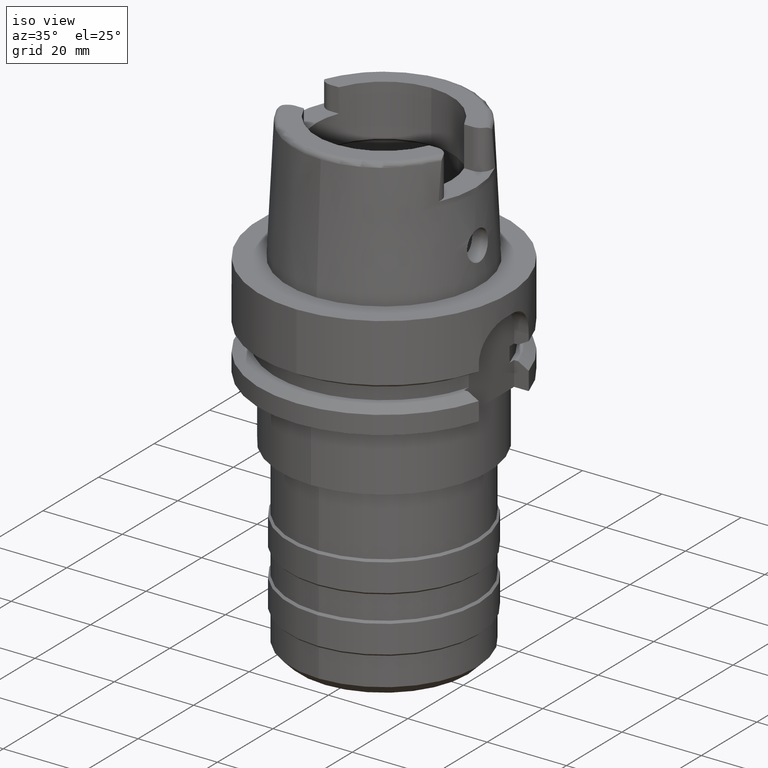
[diagram: clean part render]
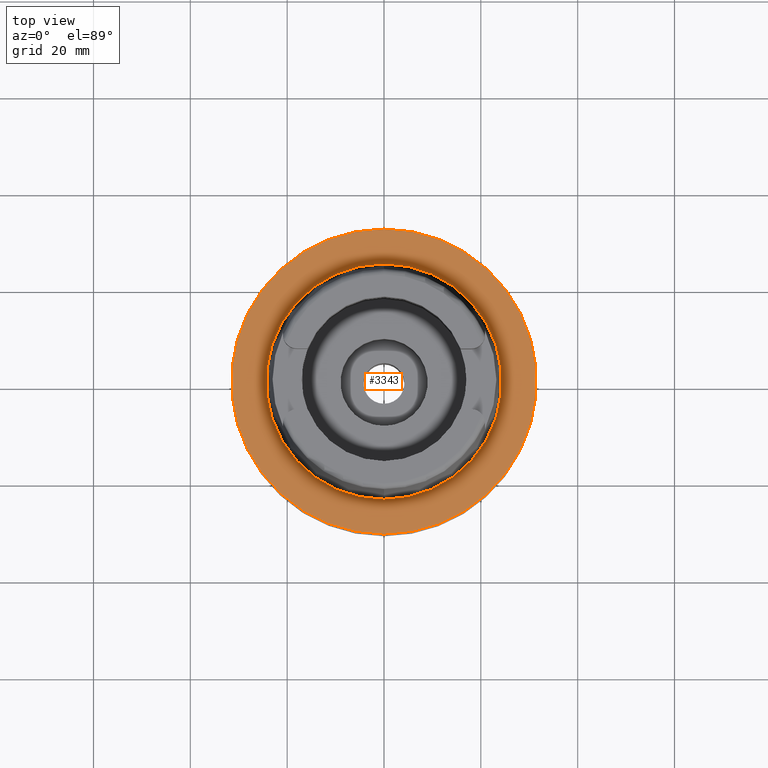
[diagram: tour spotlight — one face highlighted and labeled with its STEP entity id]
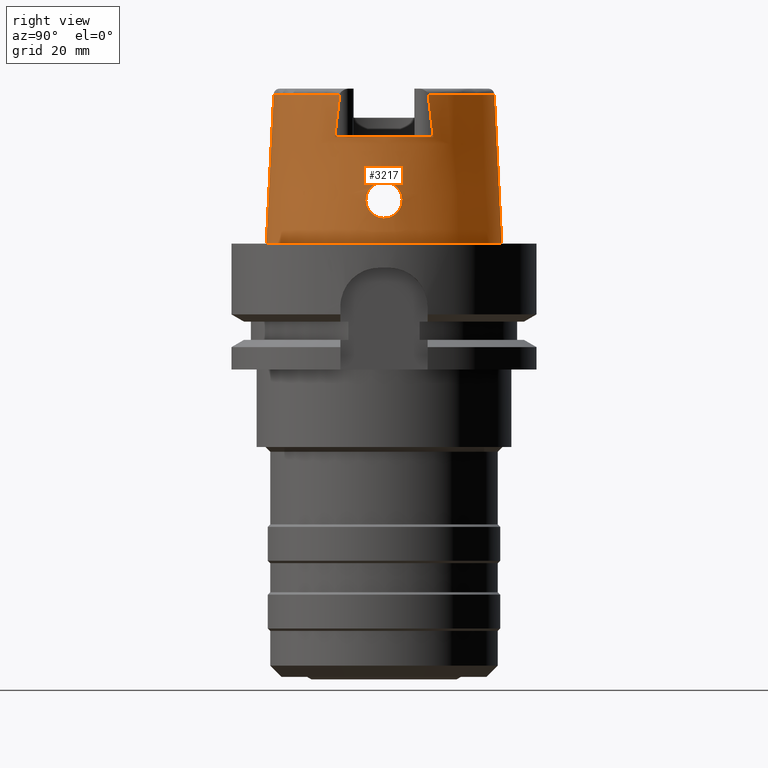
[diagram: tour spotlight — one face highlighted and labeled with its STEP entity id]
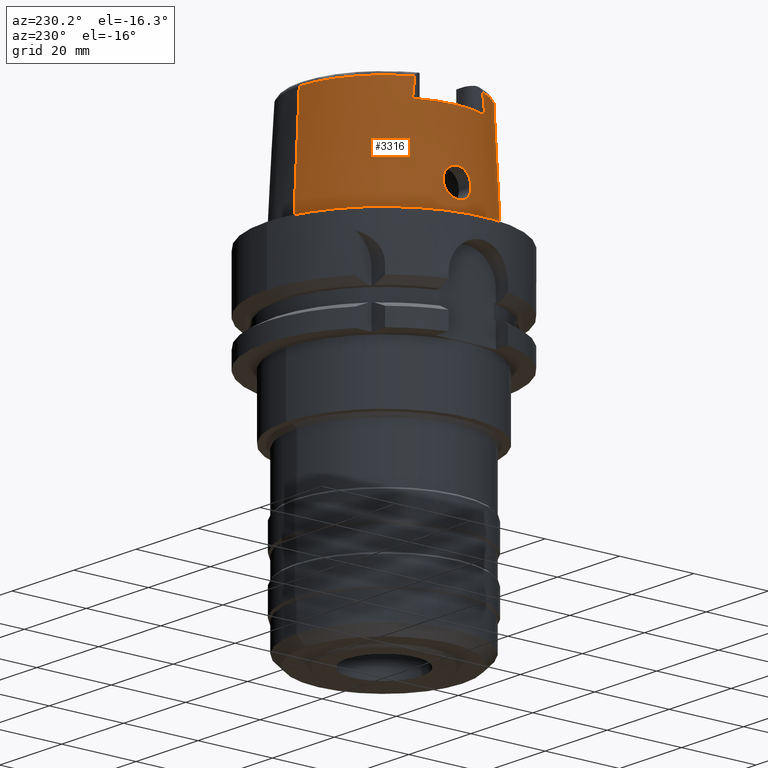
[diagram: tour spotlight — one face highlighted and labeled with its STEP entity id]
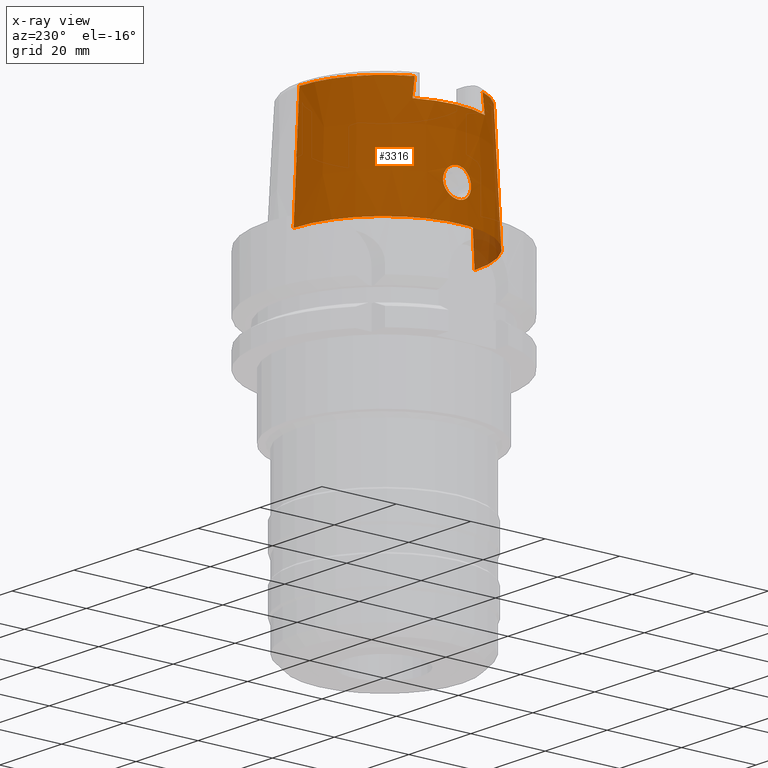
[diagram: x-ray of the same camera — body ghosted, this tour face saturated]
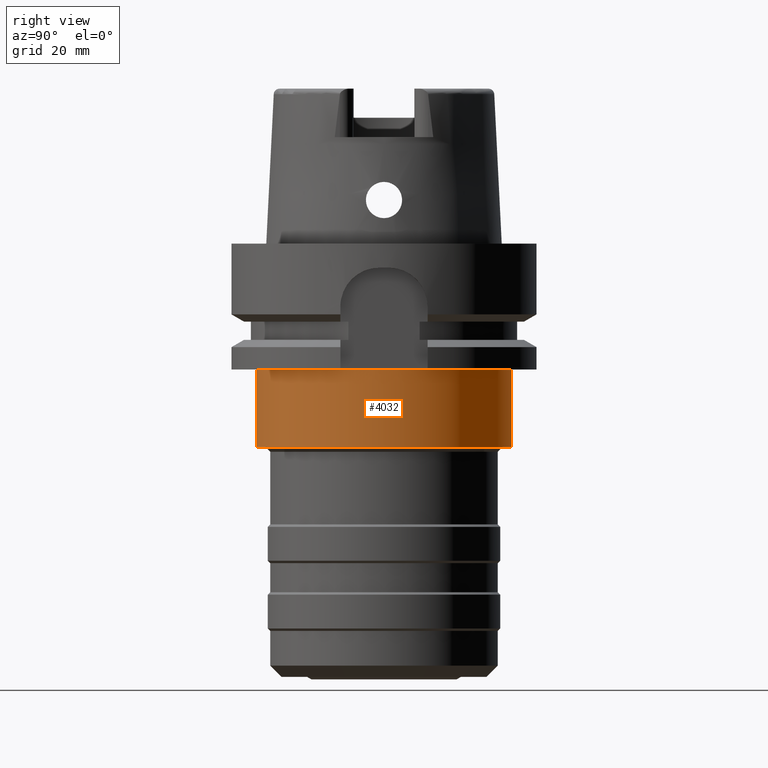
[diagram: tour spotlight — one face highlighted and labeled with its STEP entity id]
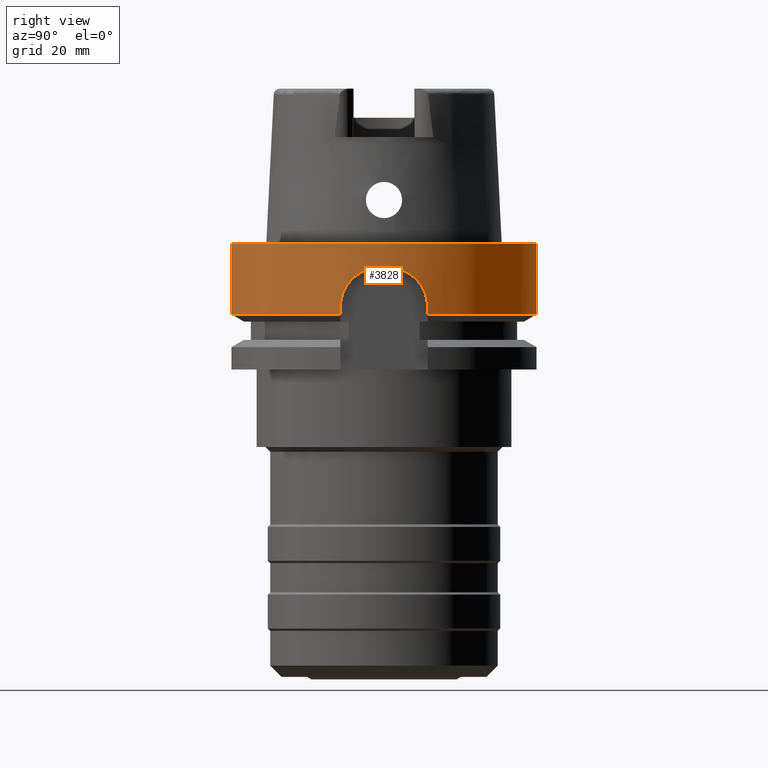
[diagram: tour spotlight — one face highlighted and labeled with its STEP entity id]
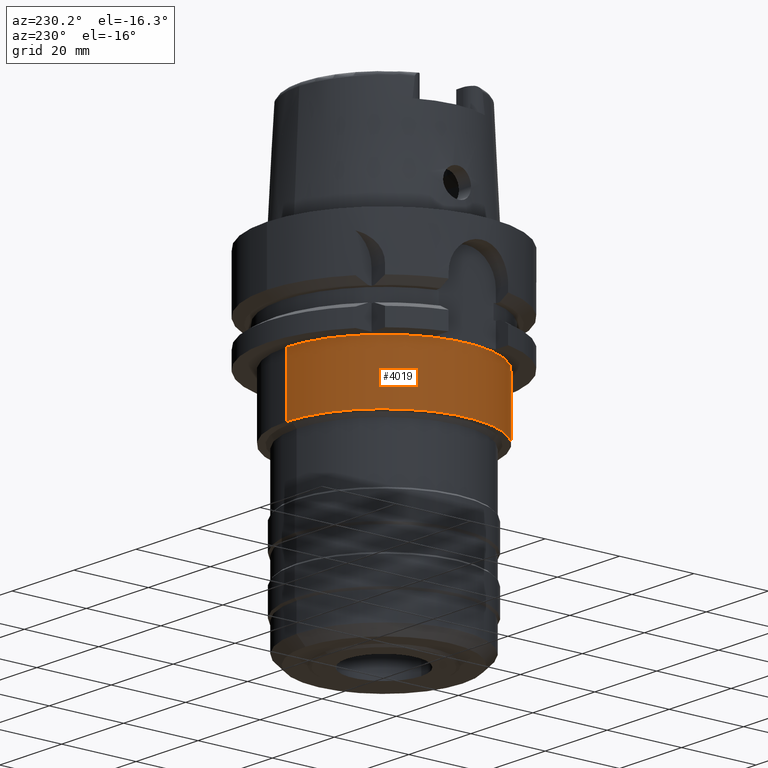
[diagram: tour spotlight — one face highlighted and labeled with its STEP entity id]
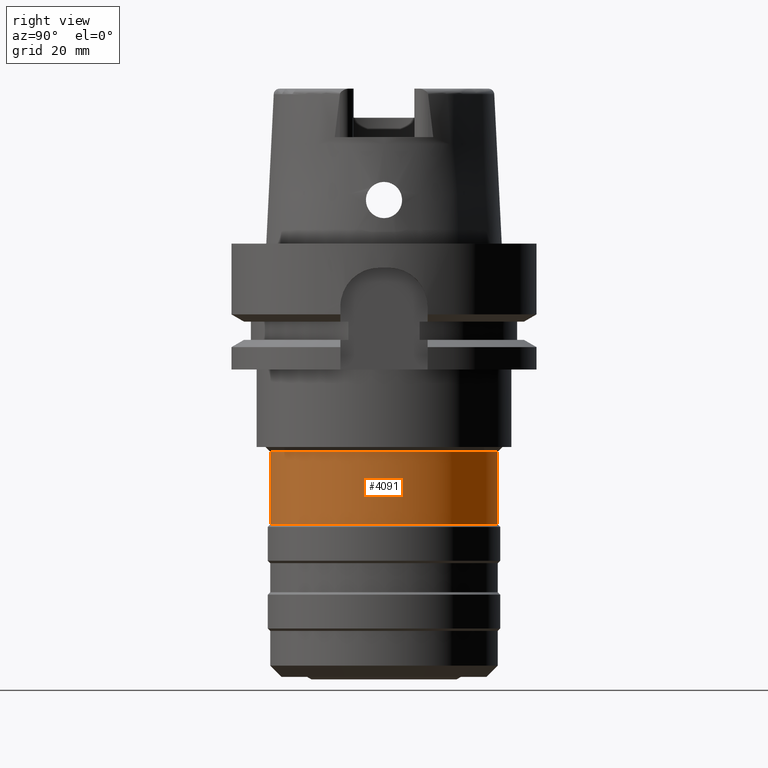
[diagram: tour spotlight — one face highlighted and labeled with its STEP entity id]
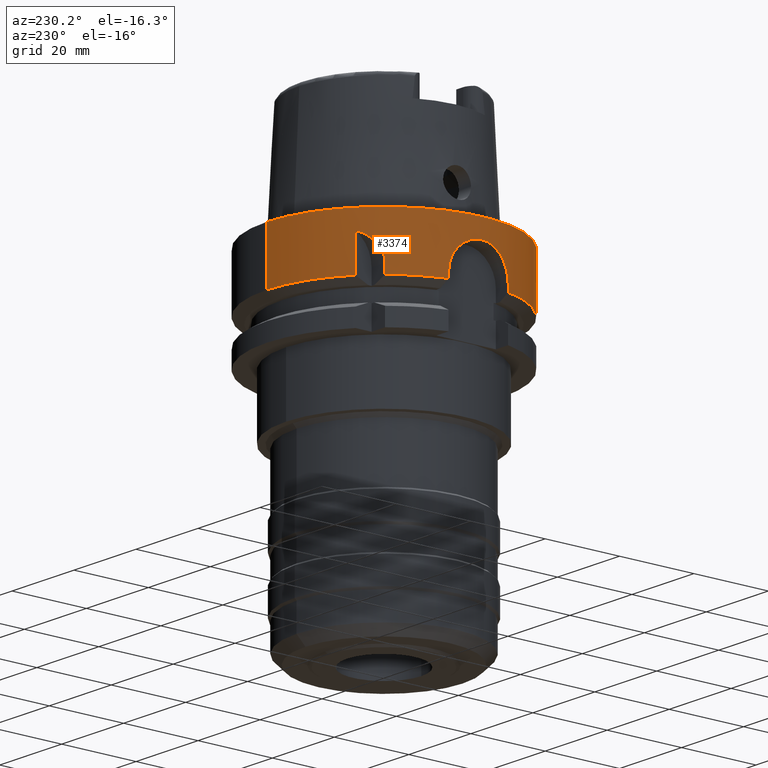
[diagram: tour spotlight — one face highlighted and labeled with its STEP entity id]
A machine part: a face-by-face anatomy tour. The part has 115 B-rep faces; the first image is the clean iso view, then the 8 largest visible faces are spotlighted one at a time (largest first), each with its STEP entity span.

Face 1 — top view, entity #3343. In plain terms, the highlighted planar face has unit normal (0, 0, -1).
Definition (entity closure, byte-faithful):
#633=CARTESIAN_POINT('',(0.E0,1.691237229622E-14,8.526512829121E-14));
#634=DIRECTION('',(0.E0,0.E0,-1.E0));
#635=DIRECTION('',(0.E0,-1.E0,0.E0));
#636=AXIS2_PLACEMENT_3D('',#633,#634,#635);
#641=CARTESIAN_POINT('',(0.E0,1.691237229622E-14,8.526512829121E-14));
#642=DIRECTION('',(0.E0,0.E0,-1.E0));
#643=DIRECTION('',(0.E0,1.E0,0.E0));
#644=AXIS2_PLACEMENT_3D('',#641,#642,#643);
#649=CARTESIAN_POINT('',(0.E0,1.413609354012E-14,1.136868377216E-13));
#650=DIRECTION('',(0.E0,0.E0,1.E0));
#651=DIRECTION('',(0.E0,-1.E0,0.E0));
#652=AXIS2_PLACEMENT_3D('',#649,#650,#651);
#657=CARTESIAN_POINT('',(0.E0,1.413609354012E-14,1.136868377216E-13));
#658=DIRECTION('',(0.E0,0.E0,1.E0));
#659=DIRECTION('',(0.E0,1.E0,0.E0));
#660=AXIS2_PLACEMENT_3D('',#657,#658,#659);
#2659=CARTESIAN_POINT('',(0.E0,-2.431503482329E1,1.882938249764E-13));
#2660=VERTEX_POINT('',#2659);
#2661=CARTESIAN_POINT('',(0.E0,2.431503482329E1,1.136868377216E-13));
#2662=VERTEX_POINT('',#2661);
#2669=CARTESIAN_POINT('',(0.E0,-3.15E1,8.526512829121E-14));
#2670=CARTESIAN_POINT('',(0.E0,3.15E1,8.526512829121E-14));
#2671=VERTEX_POINT('',#2669);
#2672=VERTEX_POINT('',#2670);
#3328=CARTESIAN_POINT('',(0.E0,1.224646799147E-14,0.E0));
#3329=DIRECTION('',(0.E0,0.E0,-1.E0));
#3330=DIRECTION('',(0.E0,-1.E0,0.E0));
#3331=AXIS2_PLACEMENT_3D('',#3328,#3329,#3330);
#3332=PLANE('',#3331);
#3334=ORIENTED_EDGE('',*,*,#3333,.T.);
#3336=ORIENTED_EDGE('',*,*,#3335,.T.);
#3337=EDGE_LOOP('',(#3334,#3336));
#3338=FACE_OUTER_BOUND('',#3337,.F.);
#3339=ORIENTED_EDGE('',*,*,#3201,.T.);
#3340=ORIENTED_EDGE('',*,*,#3302,.T.);
#3341=EDGE_LOOP('',(#3339,#3340));
#3342=FACE_BOUND('',#3341,.F.);
#637=CIRCLE('',#636,3.15E1);
#645=CIRCLE('',#644,3.15E1);
#653=CIRCLE('',#652,2.431503482329E1);
#661=CIRCLE('',#660,2.431503482329E1);
#3201=EDGE_CURVE('',#2660,#2662,#653,.T.);
#3302=EDGE_CURVE('',#2662,#2660,#661,.T.);
#3333=EDGE_CURVE('',#2671,#2672,#637,.T.);
#3335=EDGE_CURVE('',#2672,#2671,#645,.T.);
#3343=ADVANCED_FACE('',(#3338,#3342),#3332,.F.);

Face 2 — right view, entity #3217. In plain terms, the highlighted conical surface has half-angle 2.862 deg.
Definition (entity closure, byte-faithful):
#69=CARTESIAN_POINT('',(0.E0,1.413609354012E-14,2.2E1));
#70=DIRECTION('',(0.E0,0.E0,-1.E0));
#71=DIRECTION('',(8.989877876694E-1,4.379736951247E-1,0.E0));
#72=AXIS2_PLACEMENT_3D('',#69,#70,#71);
#342=CARTESIAN_POINT('',(2.086974110889E1,-9.111383544664E0,3.085992740419E1));
#347=CARTESIAN_POINT('',(0.E0,1.601838013285E-14,3.085992712280E1));
#348=DIRECTION('',(0.E0,0.E0,-1.E0));
#349=DIRECTION('',(9.164655183266E-1,-4.001136759952E-1,0.E0));
#350=AXIS2_PLACEMENT_3D('',#347,#348,#349);
#385=CARTESIAN_POINT('',(2.087000233117E1,9.149994763925E0,3.054552228659E1));
#386=CARTESIAN_POINT('',(2.087000233117E1,9.145647684066E0,3.058043093311E1));
#387=CARTESIAN_POINT('',(2.086997922678E1,9.137000530091E0,3.065041109855E1));
#388=CARTESIAN_POINT('',(2.086989360821E1,9.124124431997E0,3.075511468448E1));
#389=CARTESIAN_POINT('',(2.086979783671E1,9.115619593484E0,3.082499210393E1));
#390=CARTESIAN_POINT('',(2.086974104063E1,9.111384045993E0,3.085992598968E1));
#395=DIRECTION('',(0.E0,4.993926899645E-2,-9.987522562738E-1));
#396=VECTOR('',#395,3.089848050800E1);
#397=CARTESIAN_POINT('',(0.E0,2.277198729362E1,3.085992712280E1));
#398=LINE('',#397,#396);
#402=CARTESIAN_POINT('',(2.086974110889E1,-9.111383544664E0,3.085992740419E1));
#403=CARTESIAN_POINT('',(2.086979790990E1,-9.115619349938E0,3.082499136708E1));
#404=CARTESIAN_POINT('',(2.086989217570E1,-9.124128337269E0,3.075517833240E1));
#405=CARTESIAN_POINT('',(2.086998415727E1,-9.136990179958E0,3.065018979449E1));
#406=CARTESIAN_POINT('',(2.086999179057E1,-9.145671198919E0,3.058090511656E1));
#407=CARTESIAN_POINT('',(2.086999179057E1,-9.150018439713E0,3.054599490601E1));
#412=CARTESIAN_POINT('',(2.367751368058E1,0.E0,1.275E1));
#413=CARTESIAN_POINT('',(2.367751368058E1,-3.270526942787E-1,1.275E1));
#414=CARTESIAN_POINT('',(2.366795280192E1,-9.816523619220E-1,1.266390574925E1));
#415=CARTESIAN_POINT('',(2.362991454835E1,-1.897950997938E0,1.228442387072E1));
#416=CARTESIAN_POINT('',(2.358206216686E1,-2.685873616633E0,1.167858071313E1));
#417=CARTESIAN_POINT('',(2.354364678822E1,-3.287449595084E0,1.089214067118E1));
#418=CARTESIAN_POINT('',(2.353290337282E1,-3.664500900882E0,9.977528399322E0));
#419=CARTESIAN_POINT('',(2.356146497403E1,-3.792243527866E0,9.004856977905E0));
#420=CARTESIAN_POINT('',(2.363121924089E1,-3.666509591138E0,8.029365600327E0));
#421=CARTESIAN_POINT('',(2.373401362182E1,-3.290800271149E0,7.113357152908E0));
#422=CARTESIAN_POINT('',(2.385153015598E1,-2.687403507987E0,6.322016913371E0));
#423=CARTESIAN_POINT('',(2.396002357758E1,-1.892930323162E0,5.712149257582E0));
#424=CARTESIAN_POINT('',(2.403491917626E1,-9.746774858139E-1,5.334471688985E0));
#425=CARTESIAN_POINT('',(2.405252611747E1,-3.239513422981E-1,5.25E0));
#426=CARTESIAN_POINT('',(2.405252611747E1,0.E0,5.25E0));
#431=CARTESIAN_POINT('',(2.405252611747E1,0.E0,5.25E0));
#432=CARTESIAN_POINT('',(2.405252611747E1,3.237019176562E-1,5.25E0));
#433=CARTESIAN_POINT('',(2.403489756815E1,9.721910977131E-1,5.334615143236E0));
#434=CARTESIAN_POINT('',(2.396130780658E1,1.879366930661E0,5.705630493078E0));
#435=CARTESIAN_POINT('',(2.385425364899E1,2.670662593793E0,6.305789768634E0));
#436=CARTESIAN_POINT('',(2.373650656334E1,3.280309141253E0,7.094017539267E0));
#437=CARTESIAN_POINT('',(2.363213676418E1,3.664513851844E0,8.017786417926E0));
#438=CARTESIAN_POINT('',(2.356136249924E1,3.793047809643E0,9.004252177286E0));
#439=CARTESIAN_POINT('',(2.353283215970E1,3.663287966632E0,9.982880638259E0));
#440=CARTESIAN_POINT('',(2.354380777665E1,3.285039845503E0,1.089545402969E1));
#441=CARTESIAN_POINT('',(2.358197447367E1,2.687097584174E0,1.167668475159E1));
#442=CARTESIAN_POINT('',(2.362969599188E1,1.902037192599E0,1.228210359763E1));
#443=CARTESIAN_POINT('',(2.366790184667E1,9.841550449862E-1,1.266346793580E1));
#444=CARTESIAN_POINT('',(2.367751368058E1,3.280602134341E-1,1.275E1));
#445=CARTESIAN_POINT('',(2.367751368058E1,0.E0,1.275E1));
#450=CARTESIAN_POINT('',(2.087000233117E1,9.149994763925E0,3.054552228659E1));
#451=CARTESIAN_POINT('',(2.087000233117E1,9.268139688079E0,2.959677519009E1));
#452=CARTESIAN_POINT('',(2.087000131872E1,9.500481966085E0,2.769841628382E1));
#453=CARTESIAN_POINT('',(2.086999188773E1,9.839930571559E0,2.484991349389E1));
#454=CARTESIAN_POINT('',(2.087001804949E1,1.005901105765E1,2.295005045281E1));
#455=CARTESIAN_POINT('',(2.087001804949E1,1.016747560218E1,2.2E1));
#500=CARTESIAN_POINT('',(0.E0,1.601838013285E-14,3.085992712280E1));
#501=DIRECTION('',(0.E0,0.E0,-1.E0));
#502=DIRECTION('',(0.E0,1.E0,0.E0));
#503=AXIS2_PLACEMENT_3D('',#500,#501,#502);
#508=CARTESIAN_POINT('',(0.E0,1.601838013285E-14,3.085992712280E1));
#509=DIRECTION('',(0.E0,0.E0,-1.E0));
#510=DIRECTION('',(9.289215035764E-4,9.999995685523E-1,0.E0));
#511=AXIS2_PLACEMENT_3D('',#508,#509,#510);
#568=DIRECTION('',(0.E0,-4.993926899646E-2,-9.987522562738E-1));
#569=VECTOR('',#568,3.089848050800E1);
#570=CARTESIAN_POINT('',(0.E0,-2.277198729362E1,3.085992712280E1));
#571=LINE('',#570,#569);
#649=CARTESIAN_POINT('',(0.E0,1.413609354012E-14,1.136868377216E-13));
#650=DIRECTION('',(0.E0,0.E0,1.E0));
#651=DIRECTION('',(0.E0,-1.E0,0.E0));
#652=AXIS2_PLACEMENT_3D('',#649,#650,#651);
#2558=CARTESIAN_POINT('',(2.086999606047E1,-1.016757672263E1,2.2E1));
#2559=CARTESIAN_POINT('',(2.086999606047E1,-1.005911256636E1,2.295005970425E1));
#2560=CARTESIAN_POINT('',(2.087000074386E1,-9.839671170730E0,2.484985276533E1));
#2561=CARTESIAN_POINT('',(2.087000330580E1,-9.500221779046E0,2.769849459294E1));
#2562=CARTESIAN_POINT('',(2.086999179057E1,-9.268249004905E0,2.959655269214E1));
#2563=CARTESIAN_POINT('',(2.086999179057E1,-9.150018439713E0,3.054599490601E1));
#2595=CARTESIAN_POINT('',(2.087001804949E1,1.016747560218E1,2.2E1));
#2596=VERTEX_POINT('',#2595);
#2597=CARTESIAN_POINT('',(2.087E1,-1.016755860605E1,2.2E1));
#2598=VERTEX_POINT('',#2597);
#2646=CARTESIAN_POINT('',(0.E0,2.277198729362E1,3.085992712280E1));
#2647=VERTEX_POINT('',#2646);
#2648=CARTESIAN_POINT('',(2.115338867621E-2,2.277197746870E1,3.085992712280E1));
#2649=CARTESIAN_POINT('',(2.086974092012E1,9.111384045666E0,3.085992712280E1));
#2650=VERTEX_POINT('',#2648);
#2651=VERTEX_POINT('',#2649);
#2652=VERTEX_POINT('',#342);
#2653=CARTESIAN_POINT('',(0.E0,-2.277198729362E1,3.085992712280E1));
#2654=VERTEX_POINT('',#2653);
#2659=CARTESIAN_POINT('',(0.E0,-2.431503482329E1,1.882938249764E-13));
#2660=VERTEX_POINT('',#2659);
#2661=CARTESIAN_POINT('',(0.E0,2.431503482329E1,1.136868377216E-13));
#2662=VERTEX_POINT('',#2661);
#2665=VERTEX_POINT('',#450);
#2666=VERTEX_POINT('',#407);
#2667=VERTEX_POINT('',#412);
#2668=VERTEX_POINT('',#426);
#3185=CARTESIAN_POINT('',(0.E0,1.413609354012E-14,1.542996356140E1));
#3186=DIRECTION('',(0.E0,0.E0,-1.E0));
#3187=DIRECTION('',(0.E0,-1.E0,0.E0));
#3188=AXIS2_PLACEMENT_3D('',#3185,#3186,#3187);
#3189=CONICAL_SURFACE('',#3188,2.354351105845E1,2.8625E0);
#3190=ORIENTED_EDGE('',*,*,#2993,.F.);
#3192=ORIENTED_EDGE('',*,*,#3191,.F.);
#3194=ORIENTED_EDGE('',*,*,#3193,.T.);
#3196=ORIENTED_EDGE('',*,*,#3195,.F.);
#3198=ORIENTED_EDGE('',*,*,#3197,.F.);
#3200=ORIENTED_EDGE('',*,*,#3199,.T.);
#3202=ORIENTED_EDGE('',*,*,#3201,.F.);
#3204=ORIENTED_EDGE('',*,*,#3203,.F.);
#3205=ORIENTED_EDGE('',*,*,#3159,.F.);
#3206=ORIENTED_EDGE('',*,*,#3173,.T.);
#3208=ORIENTED_EDGE('',*,*,#3207,.F.);
#3209=EDGE_LOOP('',(#3190,#3192,#3194,#3196,#3198,#3200,#3202,#3204,#3205,#3206,
#3208));
#3210=FACE_OUTER_BOUND('',#3209,.F.);
#3212=ORIENTED_EDGE('',*,*,#3211,.T.);
#3214=ORIENTED_EDGE('',*,*,#3213,.T.);
#3215=EDGE_LOOP('',(#3212,#3214));
#3216=FACE_BOUND('',#3215,.F.);
#73=CIRCLE('',#72,2.321499834175E1);
#351=CIRCLE('',#350,2.277198729362E1);
#391=B_SPLINE_CURVE_WITH_KNOTS('',3,(#385,#386,#387,#388,#389,#390),
.UNSPECIFIED.,.F.,.F.,(4,1,1,4),(0.E0,3.333333333333E-1,6.666666666667E-1,1.E0),
.UNSPECIFIED.);
#408=B_SPLINE_CURVE_WITH_KNOTS('',3,(#402,#403,#404,#405,#406,#407),
.UNSPECIFIED.,.F.,.F.,(4,1,1,4),(0.E0,3.333333333333E-1,6.666666666667E-1,1.E0),
.UNSPECIFIED.);
#427=B_SPLINE_CURVE_WITH_KNOTS('',3,(#412,#413,#414,#415,#416,#417,#418,#419,
#420,#421,#422,#423,#424,#425,#426),.UNSPECIFIED.,.F.,.F.,(4,1,1,1,1,1,1,1,1,1,
1,1,4),(0.E0,8.333333333333E-2,1.666666666667E-1,2.5E-1,3.333333333333E-1,
4.166666666667E-1,5.E-1,5.833333333333E-1,6.666666666667E-1,7.5E-1,
8.333333333333E-1,9.166666666667E-1,1.E0),.UNSPECIFIED.);
#446=B_SPLINE_CURVE_WITH_KNOTS('',3,(#431,#432,#433,#434,#435,#436,#437,#438,
#439,#440,#441,#442,#443,#444,#445),.UNSPECIFIED.,.F.,.F.,(4,1,1,1,1,1,1,1,1,1,
1,1,4),(0.E0,8.333333333333E-2,1.666666666667E-1,2.5E-1,3.333333333333E-1,
4.166666666667E-1,5.E-1,5.833333333333E-1,6.666666666667E-1,7.5E-1,
8.333333333333E-1,9.166666666667E-1,1.E0),.UNSPECIFIED.);
#456=B_SPLINE_CURVE_WITH_KNOTS('',3,(#450,#451,#452,#453,#454,#455),
.UNSPECIFIED.,.F.,.F.,(4,1,1,4),(0.E0,3.333333333333E-1,6.666666666667E-1,1.E0),
.UNSPECIFIED.);
#504=CIRCLE('',#503,2.277198729362E1);
#512=CIRCLE('',#511,2.277198729362E1);
#653=CIRCLE('',#652,2.431503482329E1);
#2564=B_SPLINE_CURVE_WITH_KNOTS('',3,(#2558,#2559,#2560,#2561,#2562,#2563),
.UNSPECIFIED.,.F.,.F.,(4,1,1,4),(0.E0,3.333333333333E-1,6.666666666667E-1,1.E0),
.UNSPECIFIED.);
#2993=EDGE_CURVE('',#2596,#2598,#73,.T.);
#3159=EDGE_CURVE('',#2652,#2654,#351,.T.);
#3173=EDGE_CURVE('',#2652,#2666,#408,.T.);
#3191=EDGE_CURVE('',#2665,#2596,#456,.T.);
#3193=EDGE_CURVE('',#2665,#2651,#391,.T.);
#3195=EDGE_CURVE('',#2650,#2651,#512,.T.);
#3197=EDGE_CURVE('',#2647,#2650,#504,.T.);
#3199=EDGE_CURVE('',#2647,#2662,#398,.T.);
#3201=EDGE_CURVE('',#2660,#2662,#653,.T.);
#3203=EDGE_CURVE('',#2654,#2660,#571,.T.);
#3207=EDGE_CURVE('',#2598,#2666,#2564,.T.);
#3211=EDGE_CURVE('',#2667,#2668,#427,.T.);
#3213=EDGE_CURVE('',#2668,#2667,#446,.T.);
#3217=ADVANCED_FACE('',(#3210,#3216),#3189,.T.);

Face 3 — auxiliary view, entity #3316. An x-ray twin of the same camera follows (body ghosted, this face saturated) — the face is partly hidden behind the body. In plain terms, the highlighted conical surface has half-angle 2.862 deg.
Definition (entity closure, byte-faithful):
#212=CARTESIAN_POINT('',(0.E0,1.413609354012E-14,2.6E1));
#213=DIRECTION('',(0.E0,0.E0,-1.E0));
#214=DIRECTION('',(-9.068002397791E-1,-4.215605829967E-1,0.E0));
#215=AXIS2_PLACEMENT_3D('',#212,#213,#214);
#311=CARTESIAN_POINT('',(-2.086974104063E1,-9.111384045991E0,3.085992598970E1));
#355=CARTESIAN_POINT('',(0.E0,1.601838013285E-14,3.085992712280E1));
#356=DIRECTION('',(0.E0,0.E0,-1.E0));
#357=DIRECTION('',(0.E0,-1.E0,0.E0));
#358=AXIS2_PLACEMENT_3D('',#355,#356,#357);
#363=CARTESIAN_POINT('',(0.E0,1.601838013285E-14,3.085992712280E1));
#364=DIRECTION('',(0.E0,0.E0,-1.E0));
#365=DIRECTION('',(-9.289215035765E-4,-9.999995685523E-1,0.E0));
#366=AXIS2_PLACEMENT_3D('',#363,#364,#365);
#395=DIRECTION('',(0.E0,4.993926899645E-2,-9.987522562738E-1));
#396=VECTOR('',#395,3.089848050800E1);
#397=CARTESIAN_POINT('',(0.E0,2.277198729362E1,3.085992712280E1));
#398=LINE('',#397,#396);
#487=CARTESIAN_POINT('',(-2.086974110889E1,9.111383544665E0,3.085992740419E1));
#492=CARTESIAN_POINT('',(0.E0,1.601838013285E-14,3.085992712280E1));
#493=DIRECTION('',(0.E0,0.E0,-1.E0));
#494=DIRECTION('',(-9.164655183266E-1,4.001136759952E-1,0.E0));
#495=AXIS2_PLACEMENT_3D('',#492,#493,#494);
#548=CARTESIAN_POINT('',(-2.086999931535E1,9.702216590559E0,2.6E1));
#549=CARTESIAN_POINT('',(-2.086999931535E1,9.642289321297E0,2.650524296503E1));
#550=CARTESIAN_POINT('',(-2.087000013678E1,9.521576058223E0,2.751562006362E1));
#551=CARTESIAN_POINT('',(-2.087000054824E1,9.337460505505E0,2.903084639453E1));
#552=CARTESIAN_POINT('',(-2.086999862958E1,9.212886209212E0,3.004071208366E1));
#553=CARTESIAN_POINT('',(-2.086999862958E1,9.150003078069E0,3.054568808289E1));
#558=CARTESIAN_POINT('',(-2.087000036882E1,-9.149999171608E0,3.054561049213E1));
#559=CARTESIAN_POINT('',(-2.087000036882E1,-9.145652147739E0,3.058051873960E1));
#560=CARTESIAN_POINT('',(-2.086998014254E1,-9.136998447059E0,3.065037012206E1));
#561=CARTESIAN_POINT('',(-2.086989334656E1,-9.124125027165E0,3.075512639191E1));
#562=CARTESIAN_POINT('',(-2.086979783671E1,-9.115619593490E0,3.082499210388E1));
#563=CARTESIAN_POINT('',(-2.086974104063E1,-9.111384045991E0,3.085992598970E1));
#568=DIRECTION('',(0.E0,-4.993926899646E-2,-9.987522562738E-1));
#569=VECTOR('',#568,3.089848050800E1);
#570=CARTESIAN_POINT('',(0.E0,-2.277198729362E1,3.085992712280E1));
#571=LINE('',#570,#569);
#575=CARTESIAN_POINT('',(-2.086974110889E1,9.111383544665E0,3.085992740419E1));
#576=CARTESIAN_POINT('',(-2.086979790990E1,9.115619349936E0,3.082499136709E1));
#577=CARTESIAN_POINT('',(-2.086989308757E1,9.124126286164E0,3.075513742233E1));
#578=CARTESIAN_POINT('',(-2.086998096573E1,9.136997358807E0,3.065033297991E1));
#579=CARTESIAN_POINT('',(-2.086999862958E1,9.145655815658E0,3.058059829076E1));
#580=CARTESIAN_POINT('',(-2.086999862958E1,9.150003078069E0,3.054568808289E1));
#585=CARTESIAN_POINT('',(-2.405252611747E1,7.334447623118E-14,5.25E0));
#586=CARTESIAN_POINT('',(-2.405252611747E1,-3.237030915232E-1,5.25E0));
#587=CARTESIAN_POINT('',(-2.403489748924E1,-9.721911269122E-1,
5.334615468543E0));
#588=CARTESIAN_POINT('',(-2.396130847068E1,-1.879357873622E0,5.705627446657E0));
#589=CARTESIAN_POINT('',(-2.385425771727E1,-2.670636259523E0,6.305765907778E0));
#590=CARTESIAN_POINT('',(-2.373651152935E1,-3.280287129563E0,7.093980775884E0));
#591=CARTESIAN_POINT('',(-2.363214127693E1,-3.664500851613E0,8.017738016147E0));
#592=CARTESIAN_POINT('',(-2.356136472882E1,-3.793048030507E0,9.004207522457E0));
#593=CARTESIAN_POINT('',(-2.353283246820E1,-3.663300295440E0,9.982835666788E0));
#594=CARTESIAN_POINT('',(-2.354380665742E1,-3.285058970700E0,1.089542268435E1));
#595=CARTESIAN_POINT('',(-2.358197321674E1,-2.687117047308E0,1.167666734208E1));
#596=CARTESIAN_POINT('',(-2.362969580258E1,-1.902042176441E0,1.228210229029E1));
#597=CARTESIAN_POINT('',(-2.366790190812E1,-9.841539856971E-1,
1.266346836222E1));
#598=CARTESIAN_POINT('',(-2.367751368058E1,-3.280589032204E-1,1.275E1));
#599=CARTESIAN_POINT('',(-2.367751368058E1,0.E0,1.275E1));
#604=CARTESIAN_POINT('',(-2.367751368058E1,0.E0,1.275E1));
#605=CARTESIAN_POINT('',(-2.367751368058E1,3.270542093551E-1,1.275E1));
#606=CARTESIAN_POINT('',(-2.366795271778E1,9.816529412295E-1,1.266390508909E1));
#607=CARTESIAN_POINT('',(-2.362991502034E1,1.897939998097E0,1.228442797672E1));
#608=CARTESIAN_POINT('',(-2.358206397316E1,2.685845799700E0,1.167860612329E1));
#609=CARTESIAN_POINT('',(-2.354364829682E1,3.287423707997E0,1.089218343214E1));
#610=CARTESIAN_POINT('',(-2.353290291692E1,3.664484835704E0,9.977588066433E0));
#611=CARTESIAN_POINT('',(-2.356146215157E1,3.792244170299E0,9.004910582604E0));
#612=CARTESIAN_POINT('',(-2.363121481814E1,3.666522709373E0,8.029412002980E0));
#613=CARTESIAN_POINT('',(-2.373400959277E1,3.290818373621E0,7.113386652805E0));
#614=CARTESIAN_POINT('',(-2.385152755270E1,2.687420909374E0,6.322031955034E0));
#615=CARTESIAN_POINT('',(-2.396002377348E1,1.892930668037E0,5.712147904471E0));
#616=CARTESIAN_POINT('',(-2.403491934082E1,9.746741714426E-1,5.334470972242E0));
#617=CARTESIAN_POINT('',(-2.405252611747E1,3.239491787958E-1,5.25E0));
#618=CARTESIAN_POINT('',(-2.405252611747E1,7.334447623118E-14,5.25E0));
#623=CARTESIAN_POINT('',(-2.087000036882E1,-9.149999171608E0,3.054561049213E1));
#624=CARTESIAN_POINT('',(-2.087000036882E1,-9.212867959587E0,3.004075032235E1));
#625=CARTESIAN_POINT('',(-2.087000022083E1,-9.337504413479E0,2.903083293208E1));
#626=CARTESIAN_POINT('',(-2.086999867388E1,-9.521619754863E0,2.751563053485E1));
#627=CARTESIAN_POINT('',(-2.087000294707E1,-9.642272036612E0,2.650524131227E1));
#628=CARTESIAN_POINT('',(-2.087000294707E1,-9.702199254596E0,2.6E1));
#657=CARTESIAN_POINT('',(0.E0,1.413609354012E-14,1.136868377216E-13));
#658=DIRECTION('',(0.E0,0.E0,1.E0));
#659=DIRECTION('',(0.E0,1.E0,0.E0));
#660=AXIS2_PLACEMENT_3D('',#657,#658,#659);
#2637=CARTESIAN_POINT('',(-2.087000294707E1,-9.702199254596E0,2.6E1));
#2638=VERTEX_POINT('',#2637);
#2639=CARTESIAN_POINT('',(-2.087E1,9.702213322400E0,2.6E1));
#2640=VERTEX_POINT('',#2639);
#2643=VERTEX_POINT('',#311);
#2644=VERTEX_POINT('',#558);
#2645=VERTEX_POINT('',#487);
#2646=CARTESIAN_POINT('',(0.E0,2.277198729362E1,3.085992712280E1));
#2647=VERTEX_POINT('',#2646);
#2653=CARTESIAN_POINT('',(0.E0,-2.277198729362E1,3.085992712280E1));
#2654=VERTEX_POINT('',#2653);
#2655=CARTESIAN_POINT('',(-2.115338867621E-2,-2.277197746870E1,
3.085992712280E1));
#2656=VERTEX_POINT('',#2655);
#2657=CARTESIAN_POINT('',(-2.086999862958E1,9.150003078069E0,3.054568808289E1));
#2658=VERTEX_POINT('',#2657);
#2659=CARTESIAN_POINT('',(0.E0,-2.431503482329E1,1.882938249764E-13));
#2660=VERTEX_POINT('',#2659);
#2661=CARTESIAN_POINT('',(0.E0,2.431503482329E1,1.136868377216E-13));
#2662=VERTEX_POINT('',#2661);
#2663=VERTEX_POINT('',#585);
#2664=VERTEX_POINT('',#599);
#3290=CARTESIAN_POINT('',(0.E0,1.413609354012E-14,1.542996356140E1));
#3291=DIRECTION('',(0.E0,0.E0,-1.E0));
#3292=DIRECTION('',(0.E0,-1.E0,0.E0));
#3293=AXIS2_PLACEMENT_3D('',#3290,#3291,#3292);
#3294=CONICAL_SURFACE('',#3293,2.354351105845E1,2.8625E0);
#3295=ORIENTED_EDGE('',*,*,#3087,.F.);
#3297=ORIENTED_EDGE('',*,*,#3296,.F.);
#3298=ORIENTED_EDGE('',*,*,#3140,.T.);
#3299=ORIENTED_EDGE('',*,*,#3163,.F.);
#3300=ORIENTED_EDGE('',*,*,#3161,.F.);
#3301=ORIENTED_EDGE('',*,*,#3203,.T.);
#3303=ORIENTED_EDGE('',*,*,#3302,.F.);
#3304=ORIENTED_EDGE('',*,*,#3199,.F.);
#3305=ORIENTED_EDGE('',*,*,#3252,.F.);
#3306=ORIENTED_EDGE('',*,*,#3272,.T.);
#3307=ORIENTED_EDGE('',*,*,#3283,.F.);
#3308=EDGE_LOOP('',(#3295,#3297,#3298,#3299,#3300,#3301,#3303,#3304,#3305,#3306,
#3307));
#3309=FACE_OUTER_BOUND('',#3308,.F.);
#3311=ORIENTED_EDGE('',*,*,#3310,.T.);
#3313=ORIENTED_EDGE('',*,*,#3312,.T.);
#3314=EDGE_LOOP('',(#3311,#3313));
#3315=FACE_BOUND('',#3314,.F.);
#216=CIRCLE('',#215,2.301499170874E1);
#359=CIRCLE('',#358,2.277198729362E1);
#367=CIRCLE('',#366,2.277198729362E1);
#496=CIRCLE('',#495,2.277198729362E1);
#554=B_SPLINE_CURVE_WITH_KNOTS('',3,(#548,#549,#550,#551,#552,#553),
.UNSPECIFIED.,.F.,.F.,(4,1,1,4),(0.E0,3.333333333333E-1,6.666666666667E-1,1.E0),
.UNSPECIFIED.);
#564=B_SPLINE_CURVE_WITH_KNOTS('',3,(#558,#559,#560,#561,#562,#563),
.UNSPECIFIED.,.F.,.F.,(4,1,1,4),(0.E0,3.333333333333E-1,6.666666666667E-1,1.E0),
.UNSPECIFIED.);
#581=B_SPLINE_CURVE_WITH_KNOTS('',3,(#575,#576,#577,#578,#579,#580),
.UNSPECIFIED.,.F.,.F.,(4,1,1,4),(0.E0,3.333333333333E-1,6.666666666667E-1,1.E0),
.UNSPECIFIED.);
#600=B_SPLINE_CURVE_WITH_KNOTS('',3,(#585,#586,#587,#588,#589,#590,#591,#592,
#593,#594,#595,#596,#597,#598,#599),.UNSPECIFIED.,.F.,.F.,(4,1,1,1,1,1,1,1,1,1,
1,1,4),(0.E0,8.333333333333E-2,1.666666666667E-1,2.5E-1,3.333333333333E-1,
4.166666666667E-1,5.E-1,5.833333333333E-1,6.666666666667E-1,7.5E-1,
8.333333333333E-1,9.166666666667E-1,1.E0),.UNSPECIFIED.);
#619=B_SPLINE_CURVE_WITH_KNOTS('',3,(#604,#605,#606,#607,#608,#609,#610,#611,
#612,#613,#614,#615,#616,#617,#618),.UNSPECIFIED.,.F.,.F.,(4,1,1,1,1,1,1,1,1,1,
1,1,4),(0.E0,8.333333333333E-2,1.666666666667E-1,2.5E-1,3.333333333333E-1,
4.166666666667E-1,5.E-1,5.833333333333E-1,6.666666666667E-1,7.5E-1,
8.333333333333E-1,9.166666666667E-1,1.E0),.UNSPECIFIED.);
#629=B_SPLINE_CURVE_WITH_KNOTS('',3,(#623,#624,#625,#626,#627,#628),
.UNSPECIFIED.,.F.,.F.,(4,1,1,4),(0.E0,3.333333333333E-1,6.666666666667E-1,1.E0),
.UNSPECIFIED.);
#661=CIRCLE('',#660,2.431503482329E1);
#3087=EDGE_CURVE('',#2638,#2640,#216,.T.);
#3140=EDGE_CURVE('',#2644,#2643,#564,.T.);
#3161=EDGE_CURVE('',#2654,#2656,#359,.T.);
#3163=EDGE_CURVE('',#2656,#2643,#367,.T.);
#3199=EDGE_CURVE('',#2647,#2662,#398,.T.);
#3203=EDGE_CURVE('',#2654,#2660,#571,.T.);
#3252=EDGE_CURVE('',#2645,#2647,#496,.T.);
#3272=EDGE_CURVE('',#2645,#2658,#581,.T.);
#3283=EDGE_CURVE('',#2640,#2658,#554,.T.);
#3296=EDGE_CURVE('',#2644,#2638,#629,.T.);
#3302=EDGE_CURVE('',#2662,#2660,#661,.T.);
#3310=EDGE_CURVE('',#2663,#2664,#600,.T.);
#3312=EDGE_CURVE('',#2664,#2663,#619,.T.);
#3316=ADVANCED_FACE('',(#3309,#3315),#3294,.T.);

Face 4 — right view, entity #4032. In plain terms, the highlighted cylindrical surface (partial cylindrical patch) has radius 26.3 mm, axis along (0, 0, -1).
Definition (entity closure, byte-faithful):
#1063=CARTESIAN_POINT('',(0.E0,1.691237229622E-14,-2.6E1));
#1064=DIRECTION('',(0.E0,0.E0,-1.E0));
#1065=DIRECTION('',(0.E0,1.E0,0.E0));
#1066=AXIS2_PLACEMENT_3D('',#1063,#1064,#1065);
#1632=DIRECTION('',(0.E0,0.E0,-1.E0));
#1633=VECTOR('',#1632,1.6E1);
#1634=CARTESIAN_POINT('',(0.E0,-2.63E1,-2.6E1));
#1635=LINE('',#1634,#1633);
#1639=DIRECTION('',(0.E0,0.E0,-1.E0));
#1640=VECTOR('',#1639,1.6E1);
#1641=CARTESIAN_POINT('',(0.E0,2.63E1,-2.6E1));
#1642=LINE('',#1641,#1640);
#1646=CARTESIAN_POINT('',(0.E0,1.691237229622E-14,-4.2E1));
#1647=DIRECTION('',(0.E0,0.E0,1.E0));
#1648=DIRECTION('',(0.E0,-1.E0,0.E0));
#1649=AXIS2_PLACEMENT_3D('',#1646,#1647,#1648);
#2729=CARTESIAN_POINT('',(0.E0,-2.63E1,-2.6E1));
#2730=CARTESIAN_POINT('',(0.E0,2.63E1,-2.6E1));
#2731=VERTEX_POINT('',#2729);
#2732=VERTEX_POINT('',#2730);
#2733=CARTESIAN_POINT('',(0.E0,2.63E1,-4.2E1));
#2734=VERTEX_POINT('',#2733);
#2735=CARTESIAN_POINT('',(0.E0,-2.63E1,-4.2E1));
#2736=VERTEX_POINT('',#2735);
#4020=CARTESIAN_POINT('',(0.E0,1.691237229622E-14,3.81E1));
#4021=DIRECTION('',(0.E0,0.E0,-1.E0));
#4022=DIRECTION('',(0.E0,-1.E0,0.E0));
#4023=AXIS2_PLACEMENT_3D('',#4020,#4021,#4022);
#4024=CYLINDRICAL_SURFACE('',#4023,2.63E1);
#4025=ORIENTED_EDGE('',*,*,#4010,.T.);
#4027=ORIENTED_EDGE('',*,*,#4026,.F.);
#4028=ORIENTED_EDGE('',*,*,#4013,.F.);
#4029=ORIENTED_EDGE('',*,*,#3592,.F.);
#4030=EDGE_LOOP('',(#4025,#4027,#4028,#4029));
#4031=FACE_OUTER_BOUND('',#4030,.F.);
#1067=CIRCLE('',#1066,2.63E1);
#1650=CIRCLE('',#1649,2.63E1);
#3592=EDGE_CURVE('',#2732,#2731,#1067,.T.);
#4010=EDGE_CURVE('',#2732,#2734,#1642,.T.);
#4013=EDGE_CURVE('',#2731,#2736,#1635,.T.);
#4026=EDGE_CURVE('',#2736,#2734,#1650,.T.);
#4032=ADVANCED_FACE('',(#4031),#4024,.T.);

Face 5 — right view, entity #3828. In plain terms, the highlighted cylindrical surface (partial cylindrical patch) has radius 31.5 mm, axis along (0, 0, -1).
Definition (entity closure, byte-faithful):
#641=CARTESIAN_POINT('',(0.E0,1.691237229622E-14,8.526512829121E-14));
#642=DIRECTION('',(0.E0,0.E0,-1.E0));
#643=DIRECTION('',(0.E0,1.E0,0.E0));
#644=AXIS2_PLACEMENT_3D('',#641,#642,#643);
#672=DIRECTION('',(0.E0,-2.672583210396E-14,-1.E0));
#673=VECTOR('',#672,1.462250092524E1);
#674=CARTESIAN_POINT('',(0.E0,-3.15E1,5.684341886081E-14));
#675=LINE('',#674,#673);
#1317=CARTESIAN_POINT('',(3.018691748974E1,-9.000000692652E0,
-1.462249533846E1));
#1330=CARTESIAN_POINT('',(0.E0,1.036372656198E-14,-1.462250092524E1));
#1331=DIRECTION('',(0.E0,0.E0,1.E0));
#1332=DIRECTION('',(0.E0,-1.E0,0.E0));
#1333=AXIS2_PLACEMENT_3D('',#1330,#1331,#1332);
#1338=DIRECTION('',(-2.675328981244E-8,8.973435992088E-8,1.E0));
#1339=VECTOR('',#1338,1.622502099545E0);
#1340=CARTESIAN_POINT('',(3.018691773966E1,8.999999854406E0,-1.462250209954E1));
#1341=LINE('',#1340,#1339);
#1345=CARTESIAN_POINT('',(3.018691769625E1,9.E0,-1.3E1));
#1346=CARTESIAN_POINT('',(3.018691769625E1,9.E0,-1.248532056255E1));
#1347=CARTESIAN_POINT('',(3.021613301755E1,8.902860004343E0,-1.147015708889E1));
#1348=CARTESIAN_POINT('',(3.034571622486E1,8.456536685690E0,-9.959659183401E0));
#1349=CARTESIAN_POINT('',(3.054579780038E1,7.711784216995E0,-8.552415960510E0));
#1350=CARTESIAN_POINT('',(3.078130399109E1,6.722040890436E0,-7.336498089257E0));
#1351=CARTESIAN_POINT('',(3.102459674326E1,5.506553677740E0,-6.326663504394E0));
#1352=CARTESIAN_POINT('',(3.124447900714E1,4.096734161288E0,-5.565572889131E0));
#1353=CARTESIAN_POINT('',(3.140828388447E1,2.564500123189E0,-5.101875154157E0));
#1354=CARTESIAN_POINT('',(3.146737544319E1,1.527281598561E0,-5.E0));
#1355=CARTESIAN_POINT('',(3.148412298286E1,1.E0,-5.E0));
#1360=CARTESIAN_POINT('',(3.148412298286E1,-1.E0,-5.E0));
#1361=CARTESIAN_POINT('',(3.146768529241E1,-1.517526267849E0,-5.E0));
#1362=CARTESIAN_POINT('',(3.141004856696E1,-2.538954699502E0,
-5.098190455132E0));
#1363=CARTESIAN_POINT('',(3.124942990128E1,-4.057975030993E0,
-5.550291599616E0));
#1364=CARTESIAN_POINT('',(3.103158902111E1,-5.467284028384E0,
-6.300530015817E0));
#1365=CARTESIAN_POINT('',(3.078869589422E1,-6.688616447773E0,
-7.302600245792E0));
#1366=CARTESIAN_POINT('',(3.055148208963E1,-7.689715267892E0,
-8.518319556836E0));
#1367=CARTESIAN_POINT('',(3.034888647220E1,-8.445409457353E0,
-9.930359585099E0));
#1368=CARTESIAN_POINT('',(3.021676621105E1,-8.900782915431E0,
-1.145414202695E1));
#1369=CARTESIAN_POINT('',(3.018691769625E1,-9.E0,-1.247951740620E1));
#1370=CARTESIAN_POINT('',(3.018691769625E1,-9.E0,-1.3E1));
#1375=DIRECTION('',(-1.272789334369E-7,-4.269053680079E-7,-9.999999999999E-1));
#1376=VECTOR('',#1375,1.622495338465E0);
#1377=CARTESIAN_POINT('',(3.018691769625E1,-9.E0,-1.3E1));
#1378=LINE('',#1377,#1376);
#1382=DIRECTION('',(0.E0,2.721175632404E-14,-1.E0));
#1383=VECTOR('',#1382,1.462250092524E1);
#1384=CARTESIAN_POINT('',(0.E0,3.15E1,5.684341886081E-14));
#1385=LINE('',#1384,#1383);
#1389=CARTESIAN_POINT('',(3.018691773966E1,8.999999854406E0,-1.462250209954E1));
#1413=CARTESIAN_POINT('',(0.E0,1.691237229622E-14,-5.E0));
#1414=DIRECTION('',(0.E0,0.E0,1.E0));
#1415=DIRECTION('',(9.994959677099E-1,-3.174603174603E-2,0.E0));
#1416=AXIS2_PLACEMENT_3D('',#1413,#1414,#1415);
#1445=CARTESIAN_POINT('',(0.E0,1.036372656198E-14,-1.462250092524E1));
#1446=DIRECTION('',(0.E0,0.E0,1.E0));
#1447=DIRECTION('',(9.583148474999E-1,2.857142857143E-1,0.E0));
#1448=AXIS2_PLACEMENT_3D('',#1445,#1446,#1447);
#2669=CARTESIAN_POINT('',(0.E0,-3.15E1,8.526512829121E-14));
#2670=CARTESIAN_POINT('',(0.E0,3.15E1,8.526512829121E-14));
#2671=VERTEX_POINT('',#2669);
#2672=VERTEX_POINT('',#2670);
#2677=CARTESIAN_POINT('',(0.E0,3.15E1,-1.462250092524E1));
#2678=VERTEX_POINT('',#2677);
#2679=CARTESIAN_POINT('',(0.E0,-3.15E1,-1.462250092524E1));
#2680=VERTEX_POINT('',#2679);
#2924=VERTEX_POINT('',#1317);
#2925=CARTESIAN_POINT('',(3.018691769625E1,-9.E0,-1.3E1));
#2926=VERTEX_POINT('',#2925);
#2951=VERTEX_POINT('',#1389);
#2952=CARTESIAN_POINT('',(3.018691769625E1,9.E0,-1.3E1));
#2953=VERTEX_POINT('',#2952);
#2954=VERTEX_POINT('',#1355);
#2955=CARTESIAN_POINT('',(3.148412298286E1,-1.E0,-5.E0));
#2956=VERTEX_POINT('',#2955);
#3806=CARTESIAN_POINT('',(0.E0,1.691237229622E-14,3.81E1));
#3807=DIRECTION('',(0.E0,0.E0,-1.E0));
#3808=DIRECTION('',(0.E0,-1.E0,0.E0));
#3809=AXIS2_PLACEMENT_3D('',#3806,#3807,#3808);
#3810=CYLINDRICAL_SURFACE('',#3809,3.15E1);
#3812=ORIENTED_EDGE('',*,*,#3811,.T.);
#3814=ORIENTED_EDGE('',*,*,#3813,.T.);
#3816=ORIENTED_EDGE('',*,*,#3815,.F.);
#3818=ORIENTED_EDGE('',*,*,#3817,.T.);
#3819=ORIENTED_EDGE('',*,*,#3783,.T.);
#3820=ORIENTED_EDGE('',*,*,#3798,.F.);
#3821=ORIENTED_EDGE('',*,*,#3356,.F.);
#3822=ORIENTED_EDGE('',*,*,#3335,.F.);
#3823=ORIENTED_EDGE('',*,*,#3353,.T.);
#3825=ORIENTED_EDGE('',*,*,#3824,.F.);
#3826=EDGE_LOOP('',(#3812,#3814,#3816,#3818,#3819,#3820,#3821,#3822,#3823,
#3825));
#3827=FACE_OUTER_BOUND('',#3826,.F.);
#645=CIRCLE('',#644,3.15E1);
#1334=CIRCLE('',#1333,3.15E1);
#1356=B_SPLINE_CURVE_WITH_KNOTS('',3,(#1345,#1346,#1347,#1348,#1349,#1350,#1351,
#1352,#1353,#1354,#1355),.UNSPECIFIED.,.F.,.F.,(4,1,1,1,1,1,1,1,4),(0.E0,
1.25E-1,2.5E-1,3.75E-1,5.E-1,6.25E-1,7.5E-1,8.75E-1,1.E0),.UNSPECIFIED.);
#1371=B_SPLINE_CURVE_WITH_KNOTS('',3,(#1360,#1361,#1362,#1363,#1364,#1365,#1366,
#1367,#1368,#1369,#1370),.UNSPECIFIED.,.F.,.F.,(4,1,1,1,1,1,1,1,4),(0.E0,
1.25E-1,2.5E-1,3.75E-1,5.E-1,6.25E-1,7.5E-1,8.75E-1,1.E0),.UNSPECIFIED.);
#1417=CIRCLE('',#1416,3.15E1);
#1449=CIRCLE('',#1448,3.15E1);
#3335=EDGE_CURVE('',#2672,#2671,#645,.T.);
#3353=EDGE_CURVE('',#2672,#2678,#1385,.T.);
#3356=EDGE_CURVE('',#2671,#2680,#675,.T.);
#3783=EDGE_CURVE('',#2926,#2924,#1378,.T.);
#3798=EDGE_CURVE('',#2680,#2924,#1334,.T.);
#3811=EDGE_CURVE('',#2951,#2953,#1341,.T.);
#3813=EDGE_CURVE('',#2953,#2954,#1356,.T.);
#3815=EDGE_CURVE('',#2956,#2954,#1417,.T.);
#3817=EDGE_CURVE('',#2956,#2926,#1371,.T.);
#3824=EDGE_CURVE('',#2951,#2678,#1449,.T.);
#3828=ADVANCED_FACE('',(#3827),#3810,.T.);

Face 6 — auxiliary view, entity #4019. In plain terms, the highlighted cylindrical surface (partial cylindrical patch) has radius 26.3 mm, axis along (0, 0, -1).
Definition (entity closure, byte-faithful):
#1055=CARTESIAN_POINT('',(0.E0,1.691237229622E-14,-2.6E1));
#1056=DIRECTION('',(0.E0,0.E0,-1.E0));
#1057=DIRECTION('',(0.E0,-1.E0,0.E0));
#1058=AXIS2_PLACEMENT_3D('',#1055,#1056,#1057);
#1632=DIRECTION('',(0.E0,0.E0,-1.E0));
#1633=VECTOR('',#1632,1.6E1);
#1634=CARTESIAN_POINT('',(0.E0,-2.63E1,-2.6E1));
#1635=LINE('',#1634,#1633);
#1639=DIRECTION('',(0.E0,0.E0,-1.E0));
#1640=VECTOR('',#1639,1.6E1);
#1641=CARTESIAN_POINT('',(0.E0,2.63E1,-2.6E1));
#1642=LINE('',#1641,#1640);
#1654=CARTESIAN_POINT('',(0.E0,1.691237229622E-14,-4.2E1));
#1655=DIRECTION('',(0.E0,0.E0,1.E0));
#1656=DIRECTION('',(0.E0,1.E0,0.E0));
#1657=AXIS2_PLACEMENT_3D('',#1654,#1655,#1656);
#2729=CARTESIAN_POINT('',(0.E0,-2.63E1,-2.6E1));
#2730=CARTESIAN_POINT('',(0.E0,2.63E1,-2.6E1));
#2731=VERTEX_POINT('',#2729);
#2732=VERTEX_POINT('',#2730);
#2733=CARTESIAN_POINT('',(0.E0,2.63E1,-4.2E1));
#2734=VERTEX_POINT('',#2733);
#2735=CARTESIAN_POINT('',(0.E0,-2.63E1,-4.2E1));
#2736=VERTEX_POINT('',#2735);
#4005=CARTESIAN_POINT('',(0.E0,1.691237229622E-14,3.81E1));
#4006=DIRECTION('',(0.E0,0.E0,-1.E0));
#4007=DIRECTION('',(0.E0,-1.E0,0.E0));
#4008=AXIS2_PLACEMENT_3D('',#4005,#4006,#4007);
#4009=CYLINDRICAL_SURFACE('',#4008,2.63E1);
#4011=ORIENTED_EDGE('',*,*,#4010,.F.);
#4012=ORIENTED_EDGE('',*,*,#3590,.F.);
#4014=ORIENTED_EDGE('',*,*,#4013,.T.);
#4016=ORIENTED_EDGE('',*,*,#4015,.F.);
#4017=EDGE_LOOP('',(#4011,#4012,#4014,#4016));
#4018=FACE_OUTER_BOUND('',#4017,.F.);
#1059=CIRCLE('',#1058,2.63E1);
#1658=CIRCLE('',#1657,2.63E1);
#3590=EDGE_CURVE('',#2731,#2732,#1059,.T.);
#4010=EDGE_CURVE('',#2732,#2734,#1642,.T.);
#4013=EDGE_CURVE('',#2731,#2736,#1635,.T.);
#4015=EDGE_CURVE('',#2734,#2736,#1658,.T.);
#4019=ADVANCED_FACE('',(#4018),#4009,.T.);

Face 7 — right view, entity #4091. In plain terms, the highlighted cylindrical surface (partial cylindrical patch) has radius 23.5 mm, axis along (0, 0, -1).
Definition (entity closure, byte-faithful):
#1700=CARTESIAN_POINT('',(0.E0,0.E0,-4.3E1));
#1701=DIRECTION('',(0.E0,0.E0,-1.E0));
#1702=DIRECTION('',(0.E0,1.E0,0.E0));
#1703=AXIS2_PLACEMENT_3D('',#1700,#1701,#1702);
#1708=DIRECTION('',(0.E0,0.E0,-1.E0));
#1709=VECTOR('',#1708,1.5E1);
#1710=CARTESIAN_POINT('',(0.E0,2.35E1,-4.3E1));
#1711=LINE('',#1710,#1709);
#1715=DIRECTION('',(0.E0,0.E0,-1.E0));
#1716=VECTOR('',#1715,1.5E1);
#1717=CARTESIAN_POINT('',(0.E0,-2.35E1,-4.3E1));
#1718=LINE('',#1717,#1716);
#1760=CARTESIAN_POINT('',(0.E0,0.E0,-5.8E1));
#1761=DIRECTION('',(0.E0,0.E0,1.E0));
#1762=DIRECTION('',(0.E0,-1.E0,0.E0));
#1763=AXIS2_PLACEMENT_3D('',#1760,#1761,#1762);
#2741=CARTESIAN_POINT('',(0.E0,2.35E1,-4.3E1));
#2742=VERTEX_POINT('',#2741);
#2743=CARTESIAN_POINT('',(0.E0,-2.35E1,-4.3E1));
#2744=VERTEX_POINT('',#2743);
#2745=CARTESIAN_POINT('',(0.E0,2.35E1,-5.8E1));
#2746=VERTEX_POINT('',#2745);
#2747=CARTESIAN_POINT('',(0.E0,-2.35E1,-5.8E1));
#2748=VERTEX_POINT('',#2747);
#4077=CARTESIAN_POINT('',(0.E0,1.691237229622E-14,3.81E1));
#4078=DIRECTION('',(0.E0,0.E0,-1.E0));
#4079=DIRECTION('',(0.E0,-1.E0,0.E0));
#4080=AXIS2_PLACEMENT_3D('',#4077,#4078,#4079);
#4081=CYLINDRICAL_SURFACE('',#4080,2.35E1);
#4083=ORIENTED_EDGE('',*,*,#4082,.T.);
#4085=ORIENTED_EDGE('',*,*,#4084,.F.);
#4087=ORIENTED_EDGE('',*,*,#4086,.F.);
#4088=ORIENTED_EDGE('',*,*,#4070,.F.);
#4089=EDGE_LOOP('',(#4083,#4085,#4087,#4088));
#4090=FACE_OUTER_BOUND('',#4089,.F.);
#1704=CIRCLE('',#1703,2.35E1);
#1764=CIRCLE('',#1763,2.35E1);
#4070=EDGE_CURVE('',#2742,#2744,#1704,.T.);
#4082=EDGE_CURVE('',#2742,#2746,#1711,.T.);
#4084=EDGE_CURVE('',#2748,#2746,#1764,.T.);
#4086=EDGE_CURVE('',#2744,#2748,#1718,.T.);
#4091=ADVANCED_FACE('',(#4090),#4081,.T.);

Face 8 — auxiliary view, entity #3374. In plain terms, the highlighted cylindrical surface (partial cylindrical patch) has radius 31.5 mm, axis along (0, 0, -1).
Definition (entity closure, byte-faithful):
#633=CARTESIAN_POINT('',(0.E0,1.691237229622E-14,8.526512829121E-14));
#634=DIRECTION('',(0.E0,0.E0,-1.E0));
#635=DIRECTION('',(0.E0,-1.E0,0.E0));
#636=AXIS2_PLACEMENT_3D('',#633,#634,#635);
#665=DIRECTION('',(3.142283924609E-7,2.582394108680E-7,-9.999999999999E-1));
#666=VECTOR('',#665,9.622511759751E0);
#667=CARTESIAN_POINT('',(-2.E1,2.433618704728E1,-5.000000000001E0));
#668=LINE('',#667,#666);
#672=DIRECTION('',(0.E0,-2.672583210396E-14,-1.E0));
#673=VECTOR('',#672,1.462250092524E1);
#674=CARTESIAN_POINT('',(0.E0,-3.15E1,5.684341886081E-14));
#675=LINE('',#674,#673);
#679=DIRECTION('',(1.650030093299E-8,-6.283545151575E-8,1.E0));
#680=VECTOR('',#679,1.622501850758E0);
#681=CARTESIAN_POINT('',(-3.046719549993E1,-7.999999898050E0,
-1.462250185076E1));
#682=LINE('',#681,#680);
#686=DIRECTION('',(7.697569480332E-8,2.931584392009E-7,-1.E0));
#687=VECTOR('',#686,1.622496607191E0);
#688=CARTESIAN_POINT('',(-3.046719547316E1,8.E0,-1.3E1));
#689=LINE('',#688,#687);
#693=DIRECTION('',(-4.509932086016E-6,-5.487717630522E-6,9.999999999748E-1));
#694=VECTOR('',#693,2.510737643889E0);
#695=CARTESIAN_POINT('',(-2.433617572402E1,2.000001377822E1,-1.462245154749E1));
#696=LINE('',#695,#694);
#700=CARTESIAN_POINT('',(-2.433618704728E1,2.E1,-1.211171390366E1));
#701=CARTESIAN_POINT('',(-2.433618704728E1,2.E1,-1.187976151598E1));
#702=CARTESIAN_POINT('',(-2.431967187211E1,2.002012070361E1,-1.141744171512E1));
#703=CARTESIAN_POINT('',(-2.424523651678E1,2.011035399631E1,-1.072764128534E1));
#704=CARTESIAN_POINT('',(-2.411963477406E1,2.026107967112E1,-1.004474704440E1));
#705=CARTESIAN_POINT('',(-2.394163707981E1,2.047146912439E1,-9.375543686446E0));
#706=CARTESIAN_POINT('',(-2.370766791905E1,2.074244919827E1,-8.721098011991E0));
#707=CARTESIAN_POINT('',(-2.341495401882E1,2.107291923670E1,-8.088342196108E0));
#708=CARTESIAN_POINT('',(-2.305738335901E1,2.146431901852E1,-7.478997885105E0));
#709=CARTESIAN_POINT('',(-2.262952407348E1,2.191582804991E1,-6.899673137654E0));
#710=CARTESIAN_POINT('',(-2.212344080543E1,2.242769169363E1,-6.355027269024E0));
#711=CARTESIAN_POINT('',(-2.152829385753E1,2.300088386276E1,-5.850141482151E0));
#712=CARTESIAN_POINT('',(-2.083304074025E1,2.363406048455E1,-5.392523505444E0));
#713=CARTESIAN_POINT('',(-2.029154814816E1,2.409658653172E1,-5.123437399800E0));
#714=CARTESIAN_POINT('',(-2.E1,2.433618704728E1,-5.000000000001E0));
#819=CARTESIAN_POINT('',(0.E0,1.036372656198E-14,-1.462250092524E1));
#820=DIRECTION('',(0.E0,0.E0,1.E0));
#821=DIRECTION('',(-7.725773665802E-1,6.349206349206E-1,0.E0));
#822=AXIS2_PLACEMENT_3D('',#819,#820,#821);
#851=CARTESIAN_POINT('',(-3.046719547316E1,8.E0,-1.3E1));
#852=CARTESIAN_POINT('',(-3.046719547316E1,8.E0,-1.245224003607E1));
#853=CARTESIAN_POINT('',(-3.049727303426E1,7.887058323595E0,-1.135073918024E1));
#854=CARTESIAN_POINT('',(-3.062689466042E1,7.375462100776E0,-9.752102770185E0));
#855=CARTESIAN_POINT('',(-3.082074453848E1,6.532773635205E0,-8.278876849185E0));
#856=CARTESIAN_POINT('',(-3.104430623297E1,5.390237385848E0,-7.006966913825E0));
#857=CARTESIAN_POINT('',(-3.125563068837E1,4.008870959063E0,-6.008196302168E0));
#858=CARTESIAN_POINT('',(-3.141705811214E1,2.464778611528E0,-5.328000548065E0));
#859=CARTESIAN_POINT('',(-3.150356827908E1,8.304197450074E-1,
-4.985634634503E0));
#860=CARTESIAN_POINT('',(-3.150352683520E1,-8.321668194082E-1,
-4.985822563404E0));
#861=CARTESIAN_POINT('',(-3.141693342003E1,-2.466337132340E0,
-5.328506065960E0));
#862=CARTESIAN_POINT('',(-3.125544521441E1,-4.010327446365E0,
-6.009023176732E0));
#863=CARTESIAN_POINT('',(-3.104408251685E1,-5.391520358268E0,
-7.008128874598E0));
#864=CARTESIAN_POINT('',(-3.082053940858E1,-6.533720827612E0,
-8.280182636068E0));
#865=CARTESIAN_POINT('',(-3.062672186404E1,-7.376197431372E0,
-9.753750452467E0));
#866=CARTESIAN_POINT('',(-3.049718861267E1,-7.887319828262E0,
-1.135225951338E1));
#867=CARTESIAN_POINT('',(-3.046719547316E1,-8.E0,-1.245284904069E1));
#868=CARTESIAN_POINT('',(-3.046719547316E1,-8.E0,-1.3E1));
#1322=CARTESIAN_POINT('',(0.E0,1.036372656198E-14,-1.462250092524E1));
#1323=DIRECTION('',(0.E0,0.E0,1.E0));
#1324=DIRECTION('',(-9.672125547036E-1,-2.539682539683E-1,0.E0));
#1325=AXIS2_PLACEMENT_3D('',#1322,#1323,#1324);
#1382=DIRECTION('',(0.E0,2.721175632404E-14,-1.E0));
#1383=VECTOR('',#1382,1.462250092524E1);
#1384=CARTESIAN_POINT('',(0.E0,3.15E1,5.684341886081E-14));
#1385=LINE('',#1384,#1383);
#1453=CARTESIAN_POINT('',(0.E0,1.036372656198E-14,-1.462250092524E1));
#1454=DIRECTION('',(0.E0,0.E0,1.E0));
#1455=DIRECTION('',(0.E0,1.E0,0.E0));
#1456=AXIS2_PLACEMENT_3D('',#1453,#1454,#1455);
#2669=CARTESIAN_POINT('',(0.E0,-3.15E1,8.526512829121E-14));
#2670=CARTESIAN_POINT('',(0.E0,3.15E1,8.526512829121E-14));
#2671=VERTEX_POINT('',#2669);
#2672=VERTEX_POINT('',#2670);
#2673=CARTESIAN_POINT('',(-2.E1,2.433618704728E1,-5.000000000001E0));
#2674=CARTESIAN_POINT('',(-1.999999697633E1,2.433618953219E1,
-1.462251175975E1));
#2675=VERTEX_POINT('',#2673);
#2676=VERTEX_POINT('',#2674);
#2677=CARTESIAN_POINT('',(0.E0,3.15E1,-1.462250092524E1));
#2678=VERTEX_POINT('',#2677);
#2679=CARTESIAN_POINT('',(0.E0,-3.15E1,-1.462250092524E1));
#2680=VERTEX_POINT('',#2679);
#2681=CARTESIAN_POINT('',(-3.046719547317E1,-8.000000000001E0,
-1.462250092524E1));
#2682=VERTEX_POINT('',#2681);
#2683=CARTESIAN_POINT('',(-3.046719547316E1,-8.E0,-1.3E1));
#2684=VERTEX_POINT('',#2683);
#2685=VERTEX_POINT('',#851);
#2686=CARTESIAN_POINT('',(-3.046719534827E1,8.000000475649E0,
-1.462249660719E1));
#2687=VERTEX_POINT('',#2686);
#2688=CARTESIAN_POINT('',(-2.433618704728E1,2.E1,-1.462250092524E1));
#2689=VERTEX_POINT('',#2688);
#2690=CARTESIAN_POINT('',(-2.433618704728E1,2.E1,-1.211171390366E1));
#2691=VERTEX_POINT('',#2690);
#3344=CARTESIAN_POINT('',(0.E0,1.691237229622E-14,3.81E1));
#3345=DIRECTION('',(0.E0,0.E0,-1.E0));
#3346=DIRECTION('',(0.E0,-1.E0,0.E0));
#3347=AXIS2_PLACEMENT_3D('',#3344,#3345,#3346);
#3348=CYLINDRICAL_SURFACE('',#3347,3.15E1);
#3350=ORIENTED_EDGE('',*,*,#3349,.T.);
#3352=ORIENTED_EDGE('',*,*,#3351,.F.);
#3354=ORIENTED_EDGE('',*,*,#3353,.F.);
#3355=ORIENTED_EDGE('',*,*,#3333,.F.);
#3357=ORIENTED_EDGE('',*,*,#3356,.T.);
#3359=ORIENTED_EDGE('',*,*,#3358,.F.);
#3361=ORIENTED_EDGE('',*,*,#3360,.T.);
#3363=ORIENTED_EDGE('',*,*,#3362,.F.);
#3365=ORIENTED_EDGE('',*,*,#3364,.T.);
#3367=ORIENTED_EDGE('',*,*,#3366,.F.);
#3369=ORIENTED_EDGE('',*,*,#3368,.T.);
#3371=ORIENTED_EDGE('',*,*,#3370,.T.);
#3372=EDGE_LOOP('',(#3350,#3352,#3354,#3355,#3357,#3359,#3361,#3363,#3365,#3367,
#3369,#3371));
#3373=FACE_OUTER_BOUND('',#3372,.F.);
#637=CIRCLE('',#636,3.15E1);
#715=B_SPLINE_CURVE_WITH_KNOTS('',3,(#700,#701,#702,#703,#704,#705,#706,#707,
#708,#709,#710,#711,#712,#713,#714),.UNSPECIFIED.,.F.,.F.,(4,1,1,1,1,1,1,1,1,1,
1,1,4),(0.E0,8.333333333333E-2,1.666666666667E-1,2.5E-1,3.333333333333E-1,
4.166666666667E-1,5.E-1,5.833333333333E-1,6.666666666667E-1,7.5E-1,
8.333333333333E-1,9.166666666667E-1,1.E0),.UNSPECIFIED.);
#823=CIRCLE('',#822,3.15E1);
#869=B_SPLINE_CURVE_WITH_KNOTS('',3,(#851,#852,#853,#854,#855,#856,#857,#858,
#859,#860,#861,#862,#863,#864,#865,#866,#867,#868),.UNSPECIFIED.,.F.,.F.,(4,1,1,
1,1,1,1,1,1,1,1,1,1,1,1,4),(0.E0,6.666666666667E-2,1.333333333333E-1,2.E-1,
2.666666666667E-1,3.333333333333E-1,4.E-1,4.666666666667E-1,5.333333333333E-1,
6.E-1,6.666666666667E-1,7.333333333333E-1,8.E-1,8.666666666667E-1,
9.333333333333E-1,1.E0),.UNSPECIFIED.);
#1326=CIRCLE('',#1325,3.15E1);
#1457=CIRCLE('',#1456,3.15E1);
#3333=EDGE_CURVE('',#2671,#2672,#637,.T.);
#3349=EDGE_CURVE('',#2675,#2676,#668,.T.);
#3351=EDGE_CURVE('',#2678,#2676,#1457,.T.);
#3353=EDGE_CURVE('',#2672,#2678,#1385,.T.);
#3356=EDGE_CURVE('',#2671,#2680,#675,.T.);
#3358=EDGE_CURVE('',#2682,#2680,#1326,.T.);
#3360=EDGE_CURVE('',#2682,#2684,#682,.T.);
#3362=EDGE_CURVE('',#2685,#2684,#869,.T.);
#3364=EDGE_CURVE('',#2685,#2687,#689,.T.);
#3366=EDGE_CURVE('',#2689,#2687,#823,.T.);
#3368=EDGE_CURVE('',#2689,#2691,#696,.T.);
#3370=EDGE_CURVE('',#2691,#2675,#715,.T.);
#3374=ADVANCED_FACE('',(#3373),#3348,.T.);